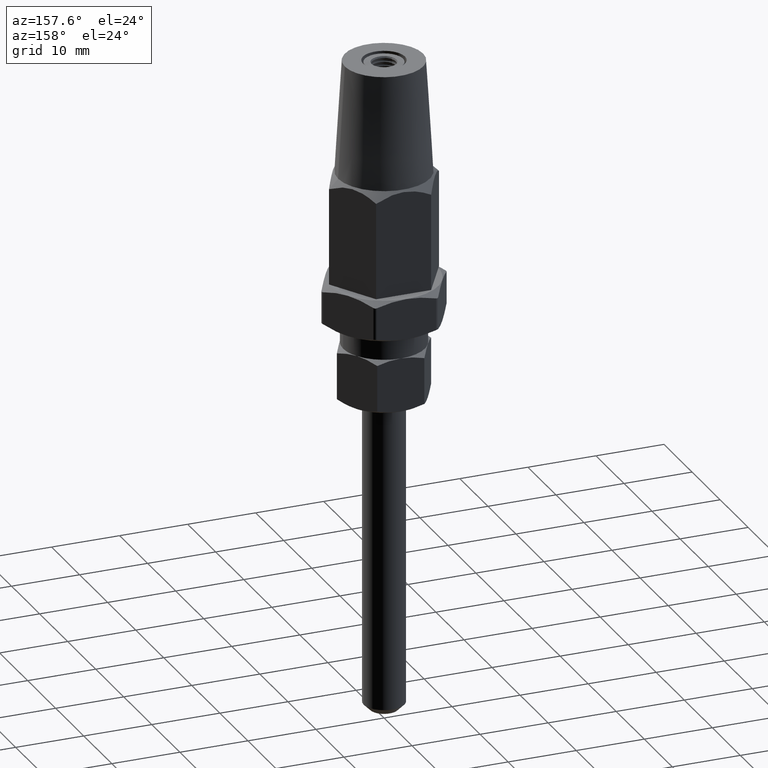
[diagram: clean part render]
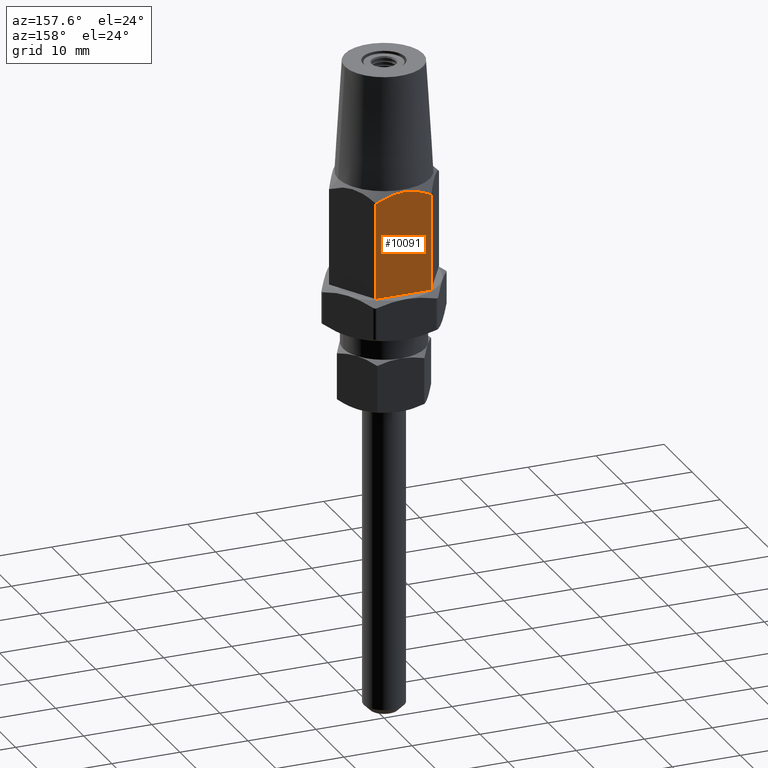
[diagram: same view with one face highlighted and labeled with its STEP entity id]
A machine part, auxiliary view. The second image highlights one B-rep face of the part: STEP entity #10091.
In plain terms, the highlighted planar face has unit normal (0, -1, 0).
Its self-contained STEP definition (entity closure, byte-faithful):
#432 = ORIENTED_EDGE ( 'NONE', *, *, #16594, .T. ) ;
#1407 = EDGE_LOOP ( 'NONE', ( #7541, #432, #1983, #9165 ) ) ;
#1983 = ORIENTED_EDGE ( 'NONE', *, *, #5629, .T. ) ;
#2020 = CARTESIAN_POINT ( 'NONE',  ( 3.409925670946965000, 7.000000000000000000, 14.46937651287401200 ) ) ;
#2069 = CARTESIAN_POINT ( 'NONE',  ( -3.413793102996685900, 6.999999999999998200, 14.48092562201060000 ) ) ;
#3228 = CARTESIAN_POINT ( 'NONE',  ( 0.7119595944789690600, 7.000000000000000000, 15.24967150401098500 ) ) ;
#3346 = CARTESIAN_POINT ( 'NONE',  ( -1.743645236953719200, 6.999999999999999100, 15.04333056936334500 ) ) ;
#3406 = CARTESIAN_POINT ( 'NONE',  ( 2.756164218356755000, 7.000000000000001800, 14.73288952019569600 ) ) ;
#3664 = AXIS2_PLACEMENT_3D ( 'NONE', #17577, #16101, #9294 ) ;
#4646 = CARTESIAN_POINT ( 'NONE',  ( -0.7060945810740293400, 6.999999999999998200, 15.21668285682283000 ) ) ;
#4705 = DIRECTION ( 'NONE',  ( -1.000000000000000000, -1.073081856240827900E-016, 0.0000000000000000000 ) ) ;
#4776 = CARTESIAN_POINT ( 'NONE',  ( -2.753980363980687700, 6.999999999999996400, 14.75549867398255300 ) ) ;
#5375 = CARTESIAN_POINT ( 'NONE',  ( 4.041451884327377000, 7.000000000000000000, 15.50000000000000000 ) ) ;
#5470 = CARTESIAN_POINT ( 'NONE',  ( 4.041451884327377900, 7.000000000000000000, 14.16709623134525700 ) ) ;
#5542 = VERTEX_POINT ( 'NONE', #12862 ) ;
#5629 = EDGE_CURVE ( 'NONE', #13278, #11864, #5690, .T. ) ;
#5690 = LINE ( 'NONE', #15752, #16408 ) ;
#6075 = CARTESIAN_POINT ( 'NONE',  ( -0.3528411979143252200, 7.000000000000000000, 15.24332622494572400 ) ) ;
#6129 = CARTESIAN_POINT ( 'NONE',  ( 3.728693633614403000, 7.000000000000000000, 14.32347535670174400 ) ) ;
#6378 = FACE_OUTER_BOUND ( 'NONE', #1407, .T. ) ;
#6475 = VECTOR ( 'NONE', #9880, 1000.000000000000000 ) ;
#7324 = CARTESIAN_POINT ( 'NONE',  ( -4.041451884327385000, 6.999999999999999100, 14.16709623134525100 ) ) ;
#7433 = CARTESIAN_POINT ( 'NONE',  ( 4.041451884327377900, 7.000000000000000000, 14.16709623134525700 ) ) ;
#7541 = ORIENTED_EDGE ( 'NONE', *, *, #12137, .F. ) ;
#9079 = B_SPLINE_CURVE_WITH_KNOTS ( 'NONE', 3,
 ( #7433, #6129, #2020, #3406, #14296, #11431, #3228, #14246, #6075, #4646, #14190, #3346, #4776, #2069, #7324 ),
 .UNSPECIFIED., .F., .F.,
 ( 4, 2, 2, 2, 2, 1, 2, 4 ),
 ( 0.004228133363842165000, 0.005275446679815781400, 0.006322759995789397800, 0.008417386627736632400, 0.008941043285723440600, 0.009464699943710247100, 0.01051201325968386500, 0.01260663989163110000 ),
 .UNSPECIFIED. ) ;
#9165 = ORIENTED_EDGE ( 'NONE', *, *, #9663, .F. ) ;
#9167 = LINE ( 'NONE', #17466, #16003 ) ;
#9294 = DIRECTION ( 'NONE',  ( 1.000000000000000000, 1.073081856240827900E-016, 0.0000000000000000000 ) ) ;
#9663 = EDGE_CURVE ( 'NONE', #5542, #11864, #9167, .T. ) ;
#9880 = DIRECTION ( 'NONE',  ( -0.0000000000000000000, -0.0000000000000000000, -1.000000000000000000 ) ) ;
#10091 = ADVANCED_FACE ( 'NONE', ( #6378 ), #14741, .F. ) ;
#10117 = LINE ( 'NONE', #5375, #6475 ) ;
#10731 = VERTEX_POINT ( 'NONE', #5470 ) ;
#11431 = CARTESIAN_POINT ( 'NONE',  ( 1.403040549273912900, 7.000000000000000900, 15.14037665000845900 ) ) ;
#11864 = VERTEX_POINT ( 'NONE', #14271 ) ;
#12137 = EDGE_CURVE ( 'NONE', #10731, #5542, #9079, .T. ) ;
#12490 = DIRECTION ( 'NONE',  ( -0.0000000000000000000, -0.0000000000000000000, -1.000000000000000000 ) ) ;
#12862 = CARTESIAN_POINT ( 'NONE',  ( -4.041451884327385000, 6.999999999999999100, 14.16709623134525100 ) ) ;
#13278 = VERTEX_POINT ( 'NONE', #15788 ) ;
#14190 = CARTESIAN_POINT ( 'NONE',  ( -1.231327931929376000, 7.000000000000000000, 15.15717178988854600 ) ) ;
#14246 = CARTESIAN_POINT ( 'NONE',  ( -0.1739434756926322200, 7.000000000000000000, 15.25008118836653500 ) ) ;
#14271 = CARTESIAN_POINT ( 'NONE',  ( -4.041451884327385000, 6.999999999999999100, 0.0000000000000000000 ) ) ;
#14296 = CARTESIAN_POINT ( 'NONE',  ( 2.419327140777462100, 6.999999999999999100, 14.85083118431118300 ) ) ;
#14741 = PLANE ( 'NONE',  #3664 ) ;
#15752 = CARTESIAN_POINT ( 'NONE',  ( 4.041451884327377000, 7.000000000000000000, 0.0000000000000000000 ) ) ;
#15788 = CARTESIAN_POINT ( 'NONE',  ( 4.041451884327377000, 7.000000000000000000, 0.0000000000000000000 ) ) ;
#16003 = VECTOR ( 'NONE', #12490, 1000.000000000000000 ) ;
#16101 = DIRECTION ( 'NONE',  ( 1.073081856240827900E-016, -1.000000000000000000, 0.0000000000000000000 ) ) ;
#16408 = VECTOR ( 'NONE', #4705, 1000.000000000000000 ) ;
#16594 = EDGE_CURVE ( 'NONE', #10731, #13278, #10117, .T. ) ;
#17466 = CARTESIAN_POINT ( 'NONE',  ( -4.041451884327385000, 6.999999999999999100, 15.50000000000000000 ) ) ;
#17577 = CARTESIAN_POINT ( 'NONE',  ( 4.041451884327377000, 7.000000000000000000, 15.50000000000000000 ) ) ;